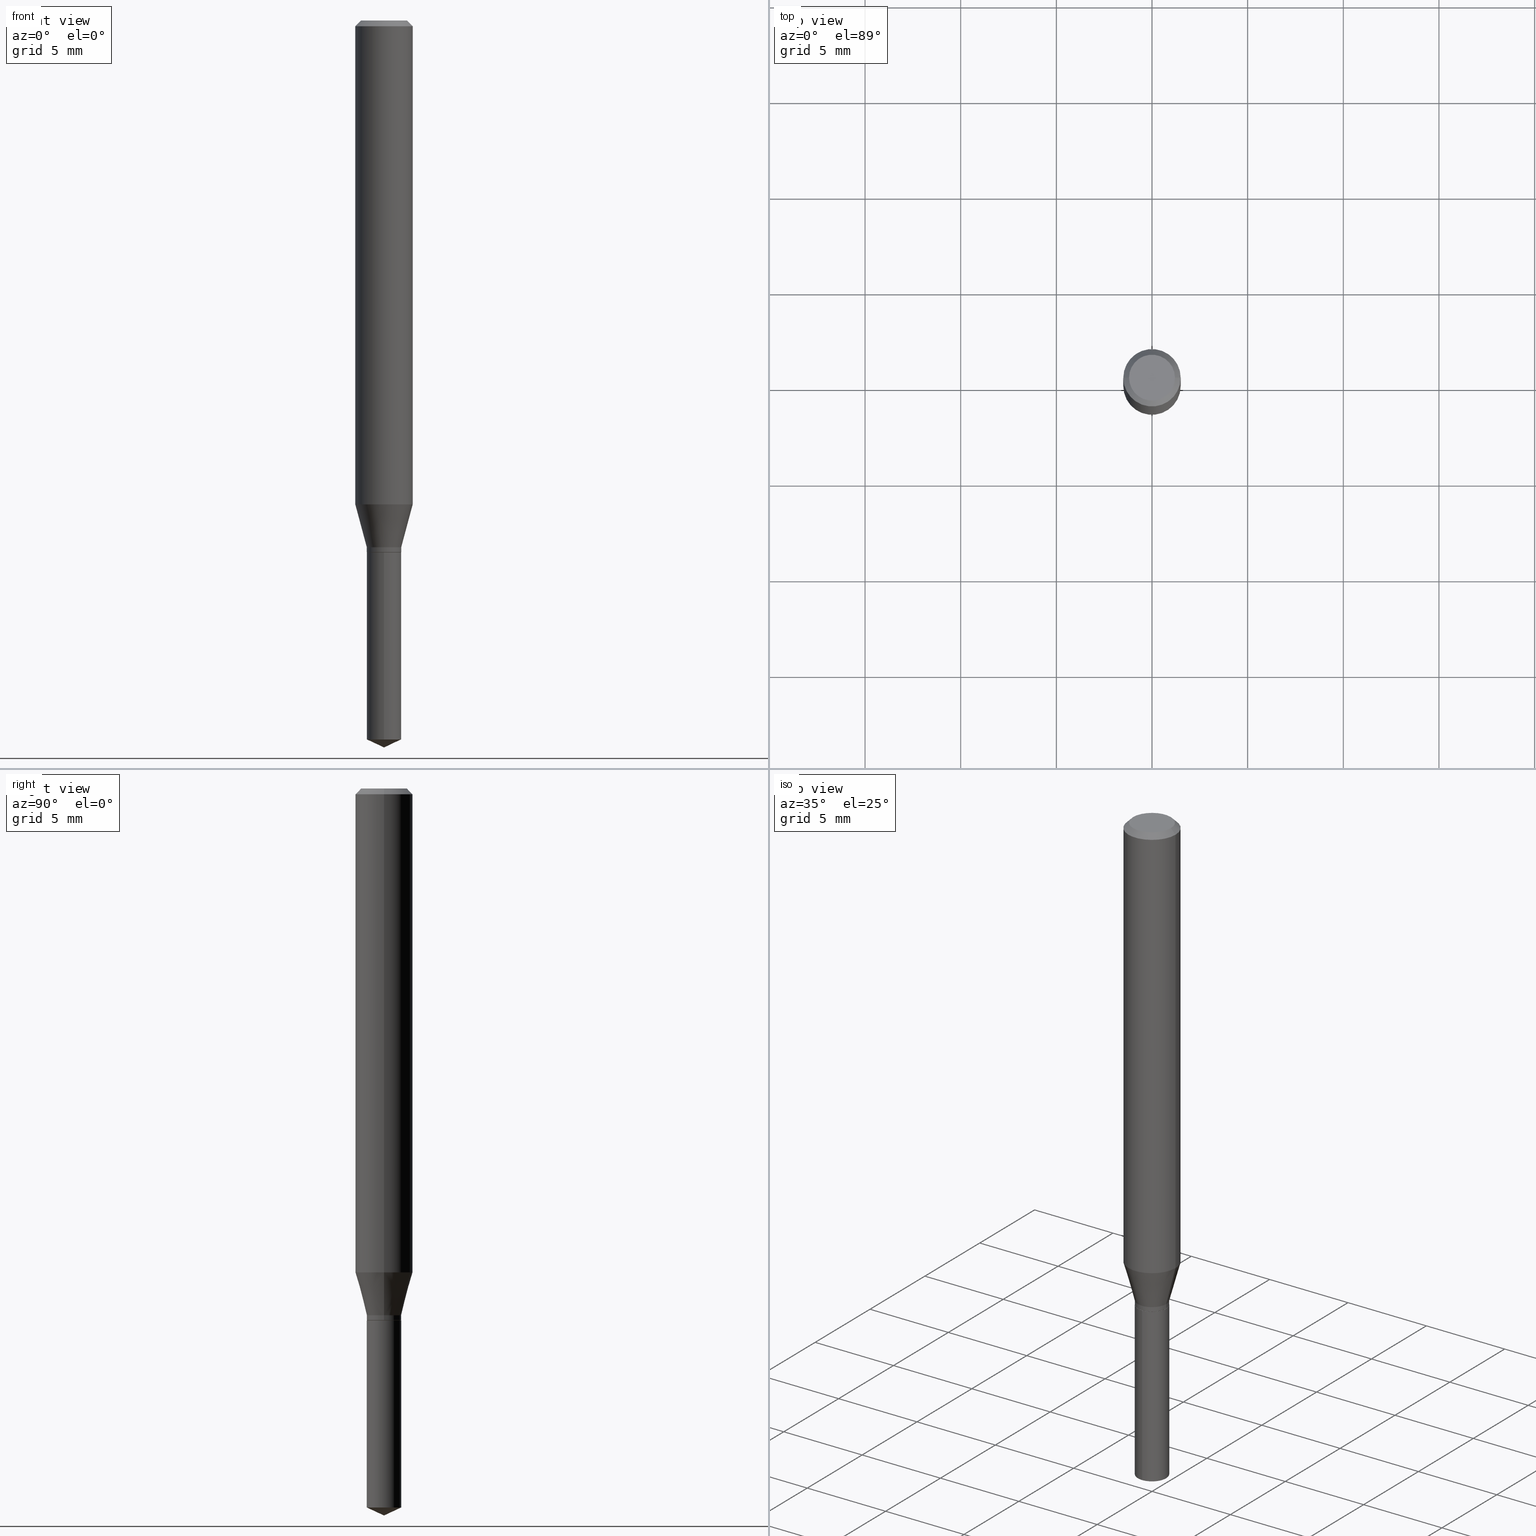
[diagram: canonical four-view strip — front | top / right | iso, engineering-drawing reading convention]
A machine part, canonical four-view strip (front | top / right | iso — engineering-drawing reading convention). The complete STEP part file that produces these views, byte-faithful:
ISO-10303-21;
HEADER;
FILE_DESCRIPTION (( 'STEP AP203' ),
    '1' );
FILE_NAME ('08178.STEP',
    '2024-04-24T13:43:27',
    ( '' ),
    ( '' ),
    'SwSTEP 2.0',
    'SolidWorks 2023',
    '' );
FILE_SCHEMA (( 'CONFIG_CONTROL_DESIGN' ));
ENDSEC;

DATA;
#1 = DIRECTION ( 'NONE',  ( -2.445468806185136597E-29, 3.491481338843145583E-15, 1.000000000000000000 ) ) ;
#2 = EDGE_CURVE ( 'NONE', #61, #256, #385, .T. ) ;
#3 = DIRECTION ( 'NONE',  ( 1.000000000000000000, -6.982962677686267499E-15, 0.000000000000000000 ) ) ;
#4 = CONICAL_SURFACE ( 'NONE', #412, 84.42940631927639572, 1.134464013796325332 ) ;
#5 = AXIS2_PLACEMENT_3D ( 'NONE', #473, #330, #176 ) ;
#6 = LINE ( 'NONE', #81, #243 ) ;
#7 = EDGE_CURVE ( 'NONE', #435, #362, #287, .T. ) ;
#8 = DIRECTION ( 'NONE',  ( -2.445468806185136597E-29, 3.491481338843145583E-15, 1.000000000000000000 ) ) ;
#9 = AXIS2_PLACEMENT_3D ( 'NONE', #236, #388, #123 ) ;
#10 = DIRECTION ( 'NONE',  ( -2.445468806185136877E-29, 3.491481338843145188E-15, 1.000000000000000000 ) ) ;
#11 = ORIENTED_EDGE ( 'NONE', *, *, #350, .T. ) ;
#12 = ORIENTED_EDGE ( 'NONE', *, *, #122, .F. ) ;
#13 = DIRECTION ( 'NONE',  ( 1.000000000000000000, -6.982962677686266711E-15, 4.876176775795935793E-29 ) ) ;
#14 = PRODUCT ( '08178', '08178', '', ( #65 ) ) ;
#15 = ORIENTED_EDGE ( 'NONE', *, *, #84, .T. ) ;
#16 = CC_DESIGN_PERSON_AND_ORGANIZATION_ASSIGNMENT ( #234, #445, ( #328 ) ) ;
#17 = ORIENTED_EDGE ( 'NONE', *, *, #22, .T. ) ;
#18 = ORIENTED_EDGE ( 'NONE', *, *, #350, .F. ) ;
#19 = AXIS2_PLACEMENT_3D ( 'NONE', #317, #239, #3 ) ;
#20 = ORIENTED_EDGE ( 'NONE', *, *, #464, .F. ) ;
#21 = LINE ( 'NONE', #195, #237 ) ;
#22 = EDGE_CURVE ( 'NONE', #435, #217, #177, .T. ) ;
#23 = PERSON_AND_ORGANIZATION ( #152, #248 ) ;
#24 = LINE ( 'NONE', #76, #200 ) ;
#25 = ADVANCED_FACE ( 'NONE', ( #213 ), #360, .T. ) ;
#26 = ORIENTED_EDGE ( 'NONE', *, *, #244, .T. ) ;
#27 = LINE ( 'NONE', #189, #199 ) ;
#28 = ORIENTED_EDGE ( 'NONE', *, *, #73, .F. ) ;
#29 = DIRECTION ( 'NONE',  ( -2.445468806185136597E-29, 3.491481338843145583E-15, 1.000000000000000000 ) ) ;
#30 = AXIS2_PLACEMENT_3D ( 'NONE', #434, #208, #393 ) ;
#31 = ORIENTED_EDGE ( 'NONE', *, *, #227, .T. ) ;
#32 = APPROVAL_PERSON_ORGANIZATION ( #358, #459, #319 ) ;
#33 = CONICAL_SURFACE ( 'NONE', #85, 0.03544999999999998846, 0.2617993877991499629 ) ;
#34 = FACE_OUTER_BOUND ( 'NONE', #288, .T. ) ;
#35 = AXIS2_PLACEMENT_3D ( 'NONE', #398, #132, #425 ) ;
#36 = ADVANCED_FACE ( 'NONE', ( #91 ), #219, .T. ) ;
#37 = FACE_OUTER_BOUND ( 'NONE', #225, .T. ) ;
#38 = EDGE_CURVE ( 'NONE', #430, #146, #141, .T. ) ;
#39 = CARTESIAN_POINT ( 'NONE',  ( 2.676565608369631794E-29, -3.821426325363822773E-15, -1.094499999999999806 ) ) ;
#40 = ORIENTED_EDGE ( 'NONE', *, *, #426, .T. ) ;
#41 = APPROVAL_ROLE ( '' ) ;
#42 = DIRECTION ( 'NONE',  ( -0.7071067811864205632, 7.493145998869895043E-15, 0.7071067811866742492 ) ) ;
#43 = AXIS2_PLACEMENT_3D ( 'NONE', #79, #235, #409 ) ;
#44 = SECURITY_CLASSIFICATION_LEVEL ( 'unclassified' ) ;
#45 = DIRECTION ( 'NONE',  ( 0.2588190451025212391, 1.565188264969622362E-15, 0.9659258262890679791 ) ) ;
#46 = APPROVAL ( #277, 'UNSPECIFIED' ) ;
#47 = PLANE ( 'NONE',  #450 ) ;
#48 = APPROVAL_PERSON_ORGANIZATION ( #221, #46, #134 ) ;
#49 = FACE_OUTER_BOUND ( 'NONE', #144, .T. ) ;
#50 = LOCAL_TIME ( 9, 43, 27.00000000000000000, #442 ) ;
#51 = CIRCLE ( 'NONE', #9, 0.03495000000000000190 ) ;
#52 = ORIENTED_EDGE ( 'NONE', *, *, #355, .F. ) ;
#53 =( NAMED_UNIT ( * ) PLANE_ANGLE_UNIT ( ) SI_UNIT ( $, .RADIAN. ) );
#54 = CARTESIAN_POINT ( 'NONE',  ( 8.265746106709734507E-48, -1.180129479067563789E-33, -3.380025165646692144E-19 ) ) ;
#55 = CALENDAR_DATE ( 2024, 24, 4 ) ;
#56 = VERTEX_POINT ( 'NONE', #463 ) ;
#57 = AXIS2_PLACEMENT_3D ( 'NONE', #230, #298, #449 ) ;
#58 = AXIS2_PLACEMENT_3D ( 'NONE', #428, #8, #371 ) ;
#59 = DIRECTION ( 'NONE',  ( 1.000000000000000000, -6.982962677686269866E-15, 0.000000000000000000 ) ) ;
#60 = EDGE_CURVE ( 'NONE', #56, #467, #480, .T. ) ;
#61 = VERTEX_POINT ( 'NONE', #245 ) ;
#62 = ORIENTED_EDGE ( 'NONE', *, *, #73, .T. ) ;
#63 = CARTESIAN_POINT ( 'NONE',  ( -0.05904999999999999832, 3.711095515056362547E-16, -0.01181000000000007218 ) ) ;
#64 = VERTEX_POINT ( 'NONE', #324 ) ;
#65 = MECHANICAL_CONTEXT ( 'NONE', #303, 'mechanical' ) ;
#66 = AXIS2_PLACEMENT_3D ( 'NONE', #164, #1, #461 ) ;
#67 = ADVANCED_FACE ( 'NONE', ( #286 ), #170, .F. ) ;
#68 = CARTESIAN_POINT ( 'NONE',  ( 2.888098660104664204E-31, -4.123439461173780263E-17, -0.01181000000000007218 ) ) ;
#69 = ORIENTED_EDGE ( 'NONE', *, *, #311, .F. ) ;
#70 = ORIENTED_EDGE ( 'NONE', *, *, #129, .T. ) ;
#71 = CYLINDRICAL_SURFACE ( 'NONE', #165, 0.03544999999999999540 ) ;
#72 = DIRECTION ( 'NONE',  ( -2.445468806185136597E-29, 3.491481338843145583E-15, 1.000000000000000000 ) ) ;
#73 = EDGE_CURVE ( 'NONE', #56, #325, #320, .T. ) ;
#74 = LOCAL_TIME ( 9, 43, 27.00000000000000000, #153 ) ;
#75 = VECTOR ( 'NONE', #306, 39.37007874015748854 ) ;
#76 = CARTESIAN_POINT ( 'NONE',  ( 0.03495000000000000190, -4.065480870948958439E-15, -1.094500000000000028 ) ) ;
#77 = CC_DESIGN_DATE_AND_TIME_ASSIGNMENT ( #482, #112, ( #115 ) ) ;
#78 = PERSON_AND_ORGANIZATION_ROLE ( 'classification_officer' ) ;
#79 = CARTESIAN_POINT ( 'NONE',  ( 2.888098660104664204E-31, -4.123439461173780263E-17, -0.01181000000000007218 ) ) ;
#80 = VERTEX_POINT ( 'NONE', #95 ) ;
#81 = CARTESIAN_POINT ( 'NONE',  ( -0.03495000000000000190, -3.573091639215668287E-15, -1.094500000000000028 ) ) ;
#82 = VECTOR ( 'NONE', #10, 39.37007874015748143 ) ;
#83 = CARTESIAN_POINT ( 'NONE',  ( 8.265746106709734507E-48, -1.180129479067563789E-33, -3.380025165646692144E-19 ) ) ;
#84 = EDGE_CURVE ( 'NONE', #149, #80, #399, .T. ) ;
#85 = AXIS2_PLACEMENT_3D ( 'NONE', #113, #197, #486 ) ;
#86 = CARTESIAN_POINT ( 'NONE',  ( 0.000000000000000000, 0.000000000000000000, 0.000000000000000000 ) ) ;
#87 = LINE ( 'NONE', #452, #232 ) ;
#88 = DIRECTION ( 'NONE',  ( 1.000000000000000000, -6.982962677686266711E-15, 4.876176775795935793E-29 ) ) ;
#89 = ADVANCED_FACE ( 'NONE', ( #394 ), #251, .T. ) ;
#90 = DATE_AND_TIME ( #55, #327 ) ;
#91 = FACE_OUTER_BOUND ( 'NONE', #407, .T. ) ;
#92 =( CONVERSION_BASED_UNIT ( 'INCH', #103 ) LENGTH_UNIT ( ) NAMED_UNIT ( #314 ) );
#93 = DIRECTION ( 'NONE',  ( 2.445468806185136597E-29, -3.491481338843145583E-15, -1.000000000000000000 ) ) ;
#94 = EDGE_LOOP ( 'NONE', ( #98, #367, #12, #335 ) ) ;
#95 = CARTESIAN_POINT ( 'NONE',  ( -2.475460269239419410E-16, -0.03545000000000516488, -1.479569393518405773 ) ) ;
#96 = AXIS2_PLACEMENT_3D ( 'NONE', #202, #240, #490 ) ;
#97 = AXIS2_PLACEMENT_3D ( 'NONE', #54, #135, #250 ) ;
#98 = ORIENTED_EDGE ( 'NONE', *, *, #198, .T. ) ;
#99 = ORIENTED_EDGE ( 'NONE', *, *, #359, .F. ) ;
#100 = CARTESIAN_POINT ( 'NONE',  ( 2.676565608369631794E-29, -3.821426325363822773E-15, -1.094499999999999806 ) ) ;
#101 = EDGE_LOOP ( 'NONE', ( #20, #289, #260 ) ) ;
#102 = ADVANCED_FACE ( 'NONE', ( #339 ), #278, .T. ) ;
#103 = LENGTH_MEASURE_WITH_UNIT ( LENGTH_MEASURE( 0.02539999999999999897 ), #171 );
#104 = ORIENTED_EDGE ( 'NONE', *, *, #205, .T. ) ;
#105 = CARTESIAN_POINT ( 'NONE',  ( 0.000000000000000000, 0.000000000000000000, 0.000000000000000000 ) ) ;
#106 = CARTESIAN_POINT ( 'NONE',  ( -0.03544999999999999540, 2.518873998269554832E-16, -1.743762489495363738E-30 ) ) ;
#107 = CARTESIAN_POINT ( 'NONE',  ( 2.676565608369632355E-29, -3.821426325363822773E-15, -1.094500000000000028 ) ) ;
#108 = ORIENTED_EDGE ( 'NONE', *, *, #426, .F. ) ;
#109 = CARTESIAN_POINT ( 'NONE',  ( 0.05905000000000011628, -3.889243465583765977E-15, -0.9958236009413741208 ) ) ;
#110 = ADVANCED_FACE ( 'NONE', ( #376 ), #4, .T. ) ;
#111 = ORIENTED_EDGE ( 'NONE', *, *, #244, .F. ) ;
#112 = DATE_TIME_ROLE ( 'classification_date' ) ;
#113 = CARTESIAN_POINT ( 'NONE',  ( 2.650643639024069224E-29, -3.784416623172084531E-15, -1.083899999999999864 ) ) ;
#114 = PRODUCT_RELATED_PRODUCT_CATEGORY ( 'detail', '', ( #14 ) ) ;
#115 = SECURITY_CLASSIFICATION ( '', '', #44 ) ;
#116 = CONICAL_SURFACE ( 'NONE', #43, 0.05904999999999999832, 0.7853981633974452814 ) ;
#117 = DIRECTION ( 'NONE',  ( -6.982962677686267499E-15, -1.000000000000000000, 3.520397390770368279E-15 ) ) ;
#118 = CALENDAR_DATE ( 2024, 24, 4 ) ;
#119 = EDGE_CURVE ( 'NONE', #326, #80, #262, .T. ) ;
#120 = LINE ( 'NONE', #419, #154 ) ;
#121 = APPROVAL_STATUS ( 'not_yet_approved' ) ;
#122 = EDGE_CURVE ( 'NONE', #64, #217, #266, .T. ) ;
#123 = DIRECTION ( 'NONE',  ( 1.000000000000000000, -6.982962677686267499E-15, 0.000000000000000000 ) ) ;
#124 = CYLINDRICAL_SURFACE ( 'NONE', #204, 0.05905000000000006077 ) ;
#125 = CLOSED_SHELL ( 'NONE', ( #184, #209, #433, #261, #136, #25, #102, #36, #89, #67, #296, #192 ) ) ;
#126 = AXIS2_PLACEMENT_3D ( 'NONE', #279, #469, #137 ) ;
#127 = CARTESIAN_POINT ( 'NONE',  ( -0.04724000000000000421, 3.504923541997677355E-16, -3.380025165670481712E-19 ) ) ;
#128 = DIRECTION ( 'NONE',  ( 2.445402730703145099E-29, -3.491575962694140016E-15, -1.000000000000000000 ) ) ;
#129 = EDGE_CURVE ( 'NONE', #256, #61, #220, .T. ) ;
#130 = VERTEX_POINT ( 'NONE', #411 ) ;
#131 = DIRECTION ( 'NONE',  ( 1.000000000000000000, 0.000000000000000000, 0.000000000000000000 ) ) ;
#132 = DIRECTION ( 'NONE',  ( -2.445402730703145379E-29, 3.491575962694140016E-15, 1.000000000000000000 ) ) ;
#133 = AXIS2_PLACEMENT_3D ( 'NONE', #158, #156, #301 ) ;
#134 = APPROVAL_ROLE ( '' ) ;
#135 = DIRECTION ( 'NONE',  ( -2.445468806185136597E-29, 3.491481338843145583E-15, 1.000000000000000000 ) ) ;
#136 = ADVANCED_FACE ( 'NONE', ( #37 ), #71, .T. ) ;
#137 = DIRECTION ( 'NONE',  ( -1.000000000000000000, 6.982962677686265922E-15, -4.876176775795935793E-29 ) ) ;
#138 = VERTEX_POINT ( 'NONE', #109 ) ;
#139 = CARTESIAN_POINT ( 'NONE',  ( -0.03544999999999998846, -3.532529223345129541E-15, -1.083899999999999864 ) ) ;
#140 = AXIS2_PLACEMENT_3D ( 'NONE', #483, #157, #294 ) ;
#141 = CIRCLE ( 'NONE', #273, 0.03545000000000000234 ) ;
#142 = ORIENTED_EDGE ( 'NONE', *, *, #369, .T. ) ;
#143 = ORIENTED_EDGE ( 'NONE', *, *, #359, .T. ) ;
#144 = EDGE_LOOP ( 'NONE', ( #259, #293 ) ) ;
#145 = APPROVAL_DATE_TIME ( #90, #46 ) ;
#146 = VERTEX_POINT ( 'NONE', #267 ) ;
#147 = DIRECTION ( 'NONE',  ( 1.000000000000000000, -6.982962677686265133E-15, 4.876176775795935793E-29 ) ) ;
#148 = PERSON_AND_ORGANIZATION ( #152, #248 ) ;
#149 = VERTEX_POINT ( 'NONE', #380 ) ;
#150 = ORIENTED_EDGE ( 'NONE', *, *, #60, .F. ) ;
#151 = LINE ( 'NONE', #332, #465 ) ;
#152 = PERSON ( 'UNSPECIFIED', 'UNSPECIFIED', 'UNSPECIFIED', ('UNSPECIFIED'), ('UNSPECIFIED'), ('UNSPECIFIED') ) ;
#153 = COORDINATED_UNIVERSAL_TIME_OFFSET ( 5, 0, .BEHIND. ) ;
#154 = VECTOR ( 'NONE', #387, 39.37007874015748143 ) ;
#155 = MANIFOLD_SOLID_BREP ( 'Body-Move/Copy2[1]', #315 ) ;
#156 = DIRECTION ( 'NONE',  ( -2.445468806185136597E-29, 3.491481338843145583E-15, 1.000000000000000000 ) ) ;
#157 = DIRECTION ( 'NONE',  ( -2.445468806185136597E-29, 3.491481338843145583E-15, 1.000000000000000000 ) ) ;
#158 = CARTESIAN_POINT ( 'NONE',  ( 2.435255552565086005E-29, -3.476899519466391057E-15, -0.9958236009413741208 ) ) ;
#159 = CIRCLE ( 'NONE', #66, 0.03544999999999998846 ) ;
#160 = DIRECTION ( 'NONE',  ( -6.982962677686265922E-15, -1.000000000000000000, 3.853100132107564390E-15 ) ) ;
#161 = EDGE_CURVE ( 'NONE', #130, #256, #24, .T. ) ;
#162 = CARTESIAN_POINT ( 'NONE',  ( 0.04724000000000000421, -3.852183633974369345E-16, -3.380025165621689721E-19 ) ) ;
#163 = DIRECTION ( 'NONE',  ( -2.445402730703145379E-29, 3.491575962694140016E-15, 1.000000000000000000 ) ) ;
#164 = CARTESIAN_POINT ( 'NONE',  ( 2.650643639024069224E-29, -3.784416623172084531E-15, -1.083899999999999864 ) ) ;
#165 = AXIS2_PLACEMENT_3D ( 'NONE', #105, #444, #147 ) ;
#166 = VECTOR ( 'NONE', #322, 39.37007874015748143 ) ;
#167 = DIRECTION ( 'NONE',  ( 1.000000000000000000, -6.982962677686266711E-15, 4.876185090822587894E-29 ) ) ;
#168 = ORIENTED_EDGE ( 'NONE', *, *, #384, .F. ) ;
#169 = APPLICATION_PROTOCOL_DEFINITION ( 'international standard', 'config_control_design', 1994, #303 ) ;
#170 = PLANE ( 'NONE',  #126 ) ;
#171 =( LENGTH_UNIT ( ) NAMED_UNIT ( * ) SI_UNIT ( $, .METRE. ) );
#172 = DIRECTION ( 'NONE',  ( -0.2588190451025212391, 5.211531920934549464E-15, 0.9659258262890679791 ) ) ;
#173 = CIRCLE ( 'NONE', #133, 0.05905000000000011628 ) ;
#174 = EDGE_CURVE ( 'NONE', #138, #64, #345, .T. ) ;
#175 = CARTESIAN_POINT ( 'NONE',  ( 0.000000000000000000, 0.000000000000000000, 0.000000000000000000 ) ) ;
#176 = DIRECTION ( 'NONE',  ( 1.000000000000000000, -6.982962677686265133E-15, 4.876176775795935793E-29 ) ) ;
#177 = LINE ( 'NONE', #63, #166 ) ;
#178 = ORIENTED_EDGE ( 'NONE', *, *, #477, .T. ) ;
#179 = APPROVAL_PERSON_ORGANIZATION ( #264, #272, #41 ) ;
#180 = ORIENTED_EDGE ( 'NONE', *, *, #281, .F. ) ;
#181 = AXIS2_PLACEMENT_3D ( 'NONE', #83, #241, #167 ) ;
#182 = EDGE_LOOP ( 'NONE', ( #183, #253, #17, #31 ) ) ;
#183 = ORIENTED_EDGE ( 'NONE', *, *, #369, .F. ) ;
#184 = ADVANCED_FACE ( 'NONE', ( #485 ), #249, .T. ) ;
#185 = DIRECTION ( 'NONE',  ( -2.445402730703145379E-29, 3.491575962694140016E-15, 1.000000000000000000 ) ) ;
#186 = DATE_AND_TIME ( #323, #74 ) ;
#187 = CARTESIAN_POINT ( 'NONE',  ( 2.888098660104664204E-31, -4.123439461173780263E-17, -0.01181000000000007218 ) ) ;
#188 = ORIENTED_EDGE ( 'NONE', *, *, #414, .F. ) ;
#189 = CARTESIAN_POINT ( 'NONE',  ( 3.658712932950369103E-29, -5.223539666176875291E-15, -1.496099999999999985 ) ) ;
#190 = DIRECTION ( 'NONE',  ( -2.445402730703145379E-29, 3.491575962694140016E-15, 1.000000000000000000 ) ) ;
#191 = EDGE_LOOP ( 'NONE', ( #423, #282, #104, #150 ) ) ;
#192 = ADVANCED_FACE ( 'NONE', ( #373 ), #361, .T. ) ;
#193 = CALENDAR_DATE ( 2024, 24, 4 ) ;
#194 = AXIS2_PLACEMENT_3D ( 'NONE', #214, #364, #59 ) ;
#195 = CARTESIAN_POINT ( 'NONE',  ( 2.518873998269822552E-16, 0.03544999999999617901, -1.094500000000000028 ) ) ;
#196 = DIRECTION ( 'NONE',  ( 1.000000000000000000, -6.982962677686267499E-15, 0.000000000000000000 ) ) ;
#197 = DIRECTION ( 'NONE',  ( -2.445468806185136597E-29, 3.491481338843145583E-15, 1.000000000000000000 ) ) ;
#198 = EDGE_CURVE ( 'NONE', #138, #325, #173, .T. ) ;
#199 = VECTOR ( 'NONE', #297, 39.37007874015748854 ) ;
#200 = VECTOR ( 'NONE', #479, 39.37007874015748854 ) ;
#201 = FACE_OUTER_BOUND ( 'NONE', #441, .T. ) ;
#202 = CARTESIAN_POINT ( 'NONE',  ( -3.104317707093147810E-30, -8.098976581537694552E-15, -1.094500000000000028 ) ) ;
#203 = FACE_OUTER_BOUND ( 'NONE', #101, .T. ) ;
#204 = AXIS2_PLACEMENT_3D ( 'NONE', #86, #316, #88 ) ;
#205 = EDGE_CURVE ( 'NONE', #256, #467, #151, .T. ) ;
#206 = CARTESIAN_POINT ( 'NONE',  ( 2.676565608369631794E-29, -3.821426325363822773E-15, -1.094499999999999806 ) ) ;
#207 = AXIS2_PLACEMENT_3D ( 'NONE', #39, #383, #356 ) ;
#208 = DIRECTION ( 'NONE',  ( -2.445402730703145379E-29, 3.491575962694140016E-15, 1.000000000000000000 ) ) ;
#209 = ADVANCED_FACE ( 'NONE', ( #34 ), #116, .T. ) ;
#210 = ORIENTED_EDGE ( 'NONE', *, *, #414, .T. ) ;
#211 = LINE ( 'NONE', #106, #82 ) ;
#212 = AXIS2_PLACEMENT_3D ( 'NONE', #413, #29, #196 ) ;
#213 = FACE_OUTER_BOUND ( 'NONE', #191, .T. ) ;
#214 = CARTESIAN_POINT ( 'NONE',  ( 2.675342873966538993E-29, -3.819680584694400481E-15, -1.093999999999999861 ) ) ;
#215 = EDGE_CURVE ( 'NONE', #149, #146, #21, .T. ) ;
#216 = CARTESIAN_POINT ( 'NONE',  ( 0.000000000000000000, 0.000000000000000000, 0.000000000000000000 ) ) ;
#217 = VERTEX_POINT ( 'NONE', #336 ) ;
#218 = LOCAL_TIME ( 9, 43, 27.00000000000000000, #484 ) ;
#219 = CYLINDRICAL_SURFACE ( 'NONE', #343, 0.05905000000000006077 ) ;
#220 = CIRCLE ( 'NONE', #285, 0.03544999999999999540 ) ;
#221 = PERSON_AND_ORGANIZATION ( #152, #248 ) ;
#222 = ORIENTED_EDGE ( 'NONE', *, *, #60, .T. ) ;
#223 = DIRECTION ( 'NONE',  ( -2.445468806185136597E-29, 3.491481338843145583E-15, 1.000000000000000000 ) ) ;
#224 =( NAMED_UNIT ( * ) SI_UNIT ( $, .STERADIAN. ) SOLID_ANGLE_UNIT ( ) );
#225 = EDGE_LOOP ( 'NONE', ( #70, #178, #108, #252 ) ) ;
#226 = DIRECTION ( 'NONE',  ( 1.000000000000000000, -6.982962677686267499E-15, 0.000000000000000000 ) ) ;
#227 = EDGE_CURVE ( 'NONE', #217, #64, #488, .T. ) ;
#228 = EDGE_LOOP ( 'NONE', ( #99, #290, #341, #400 ) ) ;
#229 = SHAPE_DEFINITION_REPRESENTATION ( #405, #351 ) ;
#230 = CARTESIAN_POINT ( 'NONE',  ( 2.650643639024069224E-29, -3.784416623172084531E-15, -1.083899999999999864 ) ) ;
#231 = APPROVAL_DATE_TIME ( #489, #272 ) ;
#232 = VECTOR ( 'NONE', #270, 39.37007874015748143 ) ;
#233 = CARTESIAN_POINT ( 'NONE',  ( 2.675342873966538993E-29, -3.819680584694400481E-15, -1.093999999999999861 ) ) ;
#234 = PERSON_AND_ORGANIZATION ( #152, #248 ) ;
#235 = DIRECTION ( 'NONE',  ( 2.445468806185136597E-29, -3.491481338843145583E-15, -1.000000000000000000 ) ) ;
#236 = CARTESIAN_POINT ( 'NONE',  ( 2.676565608369632355E-29, -3.821426325363822773E-15, -1.094500000000000028 ) ) ;
#237 = VECTOR ( 'NONE', #190, 39.37007874015748143 ) ;
#238 = CIRCLE ( 'NONE', #379, 0.03544999999999999540 ) ;
#239 = DIRECTION ( 'NONE',  ( -2.445468806185136597E-29, 3.491481338843145583E-15, 1.000000000000000000 ) ) ;
#240 = DIRECTION ( 'NONE',  ( -2.438088387897960049E-29, 3.491481338843145188E-15, 1.000000000000000000 ) ) ;
#241 = DIRECTION ( 'NONE',  ( -2.445468806185136597E-29, 3.491481338843145583E-15, 1.000000000000000000 ) ) ;
#242 = VERTEX_POINT ( 'NONE', #474 ) ;
#243 = VECTOR ( 'NONE', #42, 39.37007874015748854 ) ;
#244 = EDGE_CURVE ( 'NONE', #325, #138, #354, .T. ) ;
#245 = CARTESIAN_POINT ( 'NONE',  ( -0.03544999999999999540, -3.550161204106287516E-15, -1.093999999999999861 ) ) ;
#246 = DIRECTION ( 'NONE',  ( -1.000000000000000000, 6.982962677686266711E-15, 0.000000000000000000 ) ) ;
#247 = UNCERTAINTY_MEASURE_WITH_UNIT (LENGTH_MEASURE( 1.000000000000000082E-05 ), #92, 'distance_accuracy_value', 'NONE');
#248 = ORGANIZATION ( 'UNSPECIFIED', 'UNSPECIFIED', '' ) ;
#249 = CONICAL_SURFACE ( 'NONE', #212, 0.03495000000000000190, 0.7853981633972689780 ) ;
#250 = DIRECTION ( 'NONE',  ( 1.000000000000000000, -6.982962677686266711E-15, 4.876185090822587894E-29 ) ) ;
#251 = CONICAL_SURFACE ( 'NONE', #418, 0.05904999999999999832, 0.7853981633974452814 ) ;
#252 = ORIENTED_EDGE ( 'NONE', *, *, #205, .F. ) ;
#253 = ORIENTED_EDGE ( 'NONE', *, *, #7, .F. ) ;
#254 = PRODUCT_DEFINITION ( 'UNKNOWN', '', #328, #470 ) ;
#255 = ORIENTED_EDGE ( 'NONE', *, *, #215, .T. ) ;
#256 = VERTEX_POINT ( 'NONE', #446 ) ;
#257 = APPROVAL_STATUS ( 'not_yet_approved' ) ;
#258 = CARTESIAN_POINT ( 'NONE',  ( 3.658567025404975087E-29, -5.223746797786701947E-15, -1.496099999999999985 ) ) ;
#259 = ORIENTED_EDGE ( 'NONE', *, *, #38, .T. ) ;
#260 = ORIENTED_EDGE ( 'NONE', *, *, #84, .F. ) ;
#261 = ADVANCED_FACE ( 'NONE', ( #436 ), #33, .T. ) ;
#262 = LINE ( 'NONE', #258, #75 ) ;
#263 = DIRECTION ( 'NONE',  ( -2.445468806185136877E-29, 3.491481338843145188E-15, 1.000000000000000000 ) ) ;
#264 = PERSON_AND_ORGANIZATION ( #152, #248 ) ;
#265 = CARTESIAN_POINT ( 'NONE',  ( 0.05905000000000006077, -4.123439461173744764E-16, 2.879382386107503023E-30 ) ) ;
#266 = CIRCLE ( 'NONE', #340, 0.05904999999999999832 ) ;
#267 = CARTESIAN_POINT ( 'NONE',  ( 2.518873998269917215E-16, 0.03544999999999617901, -1.094500000000000028 ) ) ;
#268 = PLANE ( 'NONE',  #96 ) ;
#269 = COORDINATED_UNIVERSAL_TIME_OFFSET ( 5, 0, .BEHIND. ) ;
#270 = DIRECTION ( 'NONE',  ( 0.7071067811865453523, -7.319954787623248157E-15, -0.7071067811865496822 ) ) ;
#271 = FACE_OUTER_BOUND ( 'NONE', #481, .T. ) ;
#272 = APPROVAL ( #121, 'UNSPECIFIED' ) ;
#273 = AXIS2_PLACEMENT_3D ( 'NONE', #100, #280, #471 ) ;
#274 = CARTESIAN_POINT ( 'NONE',  ( 3.618215354789745296E-29, -5.165925363741898553E-15, -1.479569393518405773 ) ) ;
#275 = CARTESIAN_POINT ( 'NONE',  ( -2.475460269239513581E-16, -0.03545000000000382567, -1.094499999999999806 ) ) ;
#276 = ADVANCED_FACE ( 'NONE', ( #271 ), #416, .T. ) ;
#277 = APPROVAL_STATUS ( 'not_yet_approved' ) ;
#278 = CONICAL_SURFACE ( 'NONE', #57, 0.03544999999999998846, 0.2617993877991499629 ) ;
#279 = CARTESIAN_POINT ( 'NONE',  ( 4.132873053354867254E-48, -5.900647395337818946E-34, -1.690012582823346072E-19 ) ) ;
#280 = DIRECTION ( 'NONE',  ( -2.445402730703145379E-29, 3.491575962694140016E-15, 1.000000000000000000 ) ) ;
#281 = EDGE_CURVE ( 'NONE', #325, #217, #349, .T. ) ;
#282 = ORIENTED_EDGE ( 'NONE', *, *, #2, .T. ) ;
#283 = ORIENTED_EDGE ( 'NONE', *, *, #305, .F. ) ;
#284 = EDGE_LOOP ( 'NONE', ( #447, #397, #18 ) ) ;
#285 = AXIS2_PLACEMENT_3D ( 'NONE', #233, #223, #408 ) ;
#286 = FACE_OUTER_BOUND ( 'NONE', #402, .T. ) ;
#287 = CIRCLE ( 'NONE', #97, 0.04724000000000000421 ) ;
#288 = EDGE_LOOP ( 'NONE', ( #401, #142, #438, #432 ) ) ;
#289 = ORIENTED_EDGE ( 'NONE', *, *, #119, .T. ) ;
#290 = ORIENTED_EDGE ( 'NONE', *, *, #384, .T. ) ;
#291 = DIRECTION ( 'NONE',  ( -2.445468806185136597E-29, 3.491481338843145583E-15, 1.000000000000000000 ) ) ;
#292 = PERSON_AND_ORGANIZATION_ROLE ( 'creator' ) ;
#293 = ORIENTED_EDGE ( 'NONE', *, *, #311, .T. ) ;
#294 = DIRECTION ( 'NONE',  ( 1.000000000000000000, -6.982962677686266711E-15, 0.000000000000000000 ) ) ;
#295 = EDGE_LOOP ( 'NONE', ( #40, #62, #377, #188 ) ) ;
#296 = ADVANCED_FACE ( 'NONE', ( #201 ), #268, .F. ) ;
#297 = DIRECTION ( 'NONE',  ( 6.439704144417057174E-15, 0.9063077870366561539, 0.4226182617406862851 ) ) ;
#298 = DIRECTION ( 'NONE',  ( -2.445468806185136597E-29, 3.491481338843145583E-15, 1.000000000000000000 ) ) ;
#299 = CONICAL_SURFACE ( 'NONE', #391, 84.42940631927639572, 1.134464013796325332 ) ;
#300 = APPROVAL_DATE_TIME ( #186, #459 ) ;
#301 = DIRECTION ( 'NONE',  ( 1.000000000000000000, -6.982962677686266711E-15, 0.000000000000000000 ) ) ;
#302 = ORIENTED_EDGE ( 'NONE', *, *, #227, .F. ) ;
#303 = APPLICATION_CONTEXT ( 'configuration controlled 3d designs of mechanical parts and assemblies' ) ;
#304 = CARTESIAN_POINT ( 'NONE',  ( -9.261705871415894043E-28, 1.322399773465276608E-13, 37.87397874015748300 ) ) ;
#305 = EDGE_CURVE ( 'NONE', #80, #430, #120, .T. ) ;
#306 = DIRECTION ( 'NONE',  ( -6.328713451373402511E-15, -0.9063077870366532673, 0.4226182617406926134 ) ) ;
#307 = CC_DESIGN_PERSON_AND_ORGANIZATION_ASSIGNMENT ( #342, #78, ( #115 ) ) ;
#308 = VECTOR ( 'NONE', #347, 39.37007874015748143 ) ;
#309 = CARTESIAN_POINT ( 'NONE',  ( -0.05905000000000011628, -3.057324034000050775E-15, -0.9958236009413741208 ) ) ;
#310 = CARTESIAN_POINT ( 'NONE',  ( -9.261705871415894043E-28, 1.322399773465276608E-13, 37.87397874015748300 ) ) ;
#311 = EDGE_CURVE ( 'NONE', #146, #430, #472, .T. ) ;
#312 = DIRECTION ( 'NONE',  ( 6.982962677686265922E-15, 1.000000000000000000, -3.491575962694140016E-15 ) ) ;
#313 = CC_DESIGN_APPROVAL ( #459, ( #254 ) ) ;
#314 = DIMENSIONAL_EXPONENTS ( 1.000000000000000000, 0.000000000000000000, 0.000000000000000000, 0.000000000000000000, 0.000000000000000000, 0.000000000000000000, 0.000000000000000000 ) ;
#315 = CLOSED_SHELL ( 'NONE', ( #487, #110, #363, #276, #344 ) ) ;
#316 = DIRECTION ( 'NONE',  ( -2.445468806185136597E-29, 3.491481338843145583E-15, 1.000000000000000000 ) ) ;
#317 = CARTESIAN_POINT ( 'NONE',  ( 2.676565608369632355E-29, -3.821426325363822773E-15, -1.094500000000000028 ) ) ;
#318 = ORIENTED_EDGE ( 'NONE', *, *, #355, .T. ) ;
#319 = APPROVAL_ROLE ( '' ) ;
#320 = LINE ( 'NONE', #139, #457 ) ;
#321 = AXIS2_PLACEMENT_3D ( 'NONE', #187, #72, #378 ) ;
#322 = DIRECTION ( 'NONE',  ( -0.7071067811865453523, 2.468850131082234184E-15, -0.7071067811865496822 ) ) ;
#323 = CALENDAR_DATE ( 2024, 24, 4 ) ;
#324 = CARTESIAN_POINT ( 'NONE',  ( 0.05904999999999999832, -4.535783407291118600E-16, -0.01181000000000007218 ) ) ;
#325 = VERTEX_POINT ( 'NONE', #309 ) ;
#326 = VERTEX_POINT ( 'NONE', #420 ) ;
#327 = LOCAL_TIME ( 9, 43, 27.00000000000000000, #424 ) ;
#328 = PRODUCT_DEFINITION_FORMATION_WITH_SPECIFIED_SOURCE ( 'ANY', '', #14, .NOT_KNOWN. ) ;
#329 = CIRCLE ( 'NONE', #181, 0.04724000000000000421 ) ;
#330 = DIRECTION ( 'NONE',  ( -2.445468806185136597E-29, 3.491481338843145583E-15, 1.000000000000000000 ) ) ;
#331 = ORIENTED_EDGE ( 'NONE', *, *, #161, .F. ) ;
#332 = CARTESIAN_POINT ( 'NONE',  ( 0.03544999999999999540, -2.475460269239780807E-16, 1.728604667019659090E-30 ) ) ;
#333 = CC_DESIGN_PERSON_AND_ORGANIZATION_ASSIGNMENT ( #23, #478, ( #14 ) ) ;
#334 = FACE_OUTER_BOUND ( 'NONE', #429, .T. ) ;
#335 = ORIENTED_EDGE ( 'NONE', *, *, #174, .F. ) ;
#336 = CARTESIAN_POINT ( 'NONE',  ( -0.05904999999999999832, -1.339491471572724111E-15, -0.01181000000000007218 ) ) ;
#337 = EDGE_LOOP ( 'NONE', ( #318, #143, #365, #331 ) ) ;
#338 =( GEOMETRIC_REPRESENTATION_CONTEXT ( 3 ) GLOBAL_UNCERTAINTY_ASSIGNED_CONTEXT ( ( #247 ) ) GLOBAL_UNIT_ASSIGNED_CONTEXT ( ( #92, #53, #224 ) ) REPRESENTATION_CONTEXT ( 'NONE', 'WORKASPACE' ) );
#339 = FACE_OUTER_BOUND ( 'NONE', #431, .T. ) ;
#340 = AXIS2_PLACEMENT_3D ( 'NONE', #68, #476, #346 ) ;
#341 = ORIENTED_EDGE ( 'NONE', *, *, #161, .T. ) ;
#342 = PERSON_AND_ORGANIZATION ( #152, #248 ) ;
#343 = AXIS2_PLACEMENT_3D ( 'NONE', #216, #291, #13 ) ;
#344 = ADVANCED_FACE ( 'NONE', ( #49 ), #47, .F. ) ;
#345 = LINE ( 'NONE', #265, #456 ) ;
#346 = DIRECTION ( 'NONE',  ( 1.000000000000000000, -6.982962677686266711E-15, 0.000000000000000000 ) ) ;
#347 = DIRECTION ( 'NONE',  ( -2.445468806185136877E-29, 3.491481338843145188E-15, 1.000000000000000000 ) ) ;
#348 = AXIS2_PLACEMENT_3D ( 'NONE', #107, #404, #226 ) ;
#349 = LINE ( 'NONE', #382, #308 ) ;
#350 = EDGE_CURVE ( 'NONE', #80, #149, #238, .T. ) ;
#351 = ADVANCED_BREP_SHAPE_REPRESENTATION ( '08178', ( #155, #460, #455 ), #338 ) ;
#352 = DIRECTION ( 'NONE',  ( -6.982962677686265133E-15, -1.000000000000000000, 0.000000000000000000 ) ) ;
#353 = DIRECTION ( 'NONE',  ( -6.982962677686267499E-15, -1.000000000000000000, 3.520397390770368279E-15 ) ) ;
#354 = CIRCLE ( 'NONE', #140, 0.05905000000000011628 ) ;
#355 = EDGE_CURVE ( 'NONE', #130, #242, #51, .T. ) ;
#356 = DIRECTION ( 'NONE',  ( -6.982962677686265922E-15, -1.000000000000000000, 3.853100132107564390E-15 ) ) ;
#357 = ORIENTED_EDGE ( 'NONE', *, *, #305, .T. ) ;
#358 = PERSON_AND_ORGANIZATION ( #152, #248 ) ;
#359 = EDGE_CURVE ( 'NONE', #242, #61, #6, .T. ) ;
#360 = CYLINDRICAL_SURFACE ( 'NONE', #5, 0.03544999999999999540 ) ;
#361 = CONICAL_SURFACE ( 'NONE', #348, 0.03495000000000000190, 0.7853981633972689780 ) ;
#362 = VERTEX_POINT ( 'NONE', #162 ) ;
#363 = ADVANCED_FACE ( 'NONE', ( #203 ), #299, .T. ) ;
#364 = DIRECTION ( 'NONE',  ( -2.445468806185136597E-29, 3.491481338843145583E-15, 1.000000000000000000 ) ) ;
#365 = ORIENTED_EDGE ( 'NONE', *, *, #129, .F. ) ;
#366 = ORIENTED_EDGE ( 'NONE', *, *, #215, .F. ) ;
#367 = ORIENTED_EDGE ( 'NONE', *, *, #281, .T. ) ;
#368 = CC_DESIGN_APPROVAL ( #46, ( #328 ) ) ;
#369 = EDGE_CURVE ( 'NONE', #362, #64, #87, .T. ) ;
#370 = VECTOR ( 'NONE', #45, 39.37007874015748854 ) ;
#371 = DIRECTION ( 'NONE',  ( 1.000000000000000000, -6.982962677686271444E-15, 0.000000000000000000 ) ) ;
#372 = PERSON_AND_ORGANIZATION_ROLE ( 'creator' ) ;
#373 = FACE_OUTER_BOUND ( 'NONE', #228, .T. ) ;
#374 = ORIENTED_EDGE ( 'NONE', *, *, #38, .F. ) ;
#375 = CYLINDRICAL_SURFACE ( 'NONE', #30, 0.03545000000000000234 ) ;
#376 = FACE_OUTER_BOUND ( 'NONE', #284, .T. ) ;
#377 = ORIENTED_EDGE ( 'NONE', *, *, #198, .F. ) ;
#378 = DIRECTION ( 'NONE',  ( 1.000000000000000000, -6.982962677686266711E-15, 0.000000000000000000 ) ) ;
#379 = AXIS2_PLACEMENT_3D ( 'NONE', #274, #415, #352 ) ;
#380 = CARTESIAN_POINT ( 'NONE',  ( 2.518873998269916722E-16, 0.03544999999999483981, -1.479569393518405773 ) ) ;
#381 = EDGE_CURVE ( 'NONE', #362, #435, #329, .T. ) ;
#382 = CARTESIAN_POINT ( 'NONE',  ( -0.05905000000000006077, 4.195754854663395916E-16, -2.904631170795524694E-30 ) ) ;
#383 = DIRECTION ( 'NONE',  ( -2.445402730703145379E-29, 3.491575962694140016E-15, 1.000000000000000000 ) ) ;
#384 = EDGE_CURVE ( 'NONE', #242, #130, #417, .T. ) ;
#385 = CIRCLE ( 'NONE', #194, 0.03544999999999999540 ) ;
#386 = CARTESIAN_POINT ( 'NONE',  ( 0.03544999999999998846, -4.031962650096063203E-15, -1.083899999999999864 ) ) ;
#387 = DIRECTION ( 'NONE',  ( -2.445402730703145379E-29, 3.491575962694140016E-15, 1.000000000000000000 ) ) ;
#388 = DIRECTION ( 'NONE',  ( -2.445468806185136597E-29, 3.491481338843145583E-15, 1.000000000000000000 ) ) ;
#389 = LOCAL_TIME ( 9, 43, 27.00000000000000000, #269 ) ;
#390 = ORIENTED_EDGE ( 'NONE', *, *, #381, .T. ) ;
#391 = AXIS2_PLACEMENT_3D ( 'NONE', #310, #454, #353 ) ;
#392 = DIRECTION ( 'NONE',  ( 0.000000000000000000, 0.000000000000000000, 1.000000000000000000 ) ) ;
#393 = DIRECTION ( 'NONE',  ( -6.982962677686265922E-15, -1.000000000000000000, 3.853100132107564390E-15 ) ) ;
#394 = FACE_OUTER_BOUND ( 'NONE', #182, .T. ) ;
#395 = DATE_AND_TIME ( #475, #50 ) ;
#396 = CC_DESIGN_PERSON_AND_ORGANIZATION_ASSIGNMENT ( #468, #372, ( #254 ) ) ;
#397 = ORIENTED_EDGE ( 'NONE', *, *, #464, .T. ) ;
#398 = CARTESIAN_POINT ( 'NONE',  ( 3.618215354789745296E-29, -5.165925363741898553E-15, -1.479569393518405773 ) ) ;
#399 = CIRCLE ( 'NONE', #35, 0.03544999999999999540 ) ;
#400 = ORIENTED_EDGE ( 'NONE', *, *, #2, .F. ) ;
#401 = ORIENTED_EDGE ( 'NONE', *, *, #381, .F. ) ;
#402 = EDGE_LOOP ( 'NONE', ( #406, #390 ) ) ;
#403 = ORIENTED_EDGE ( 'NONE', *, *, #174, .T. ) ;
#404 = DIRECTION ( 'NONE',  ( -2.445468806185136597E-29, 3.491481338843145583E-15, 1.000000000000000000 ) ) ;
#405 = PRODUCT_DEFINITION_SHAPE ( 'NONE', 'NONE',  #254 ) ;
#406 = ORIENTED_EDGE ( 'NONE', *, *, #7, .T. ) ;
#407 = EDGE_LOOP ( 'NONE', ( #180, #26, #403, #302 ) ) ;
#408 = DIRECTION ( 'NONE',  ( 1.000000000000000000, -6.982962677686269866E-15, 0.000000000000000000 ) ) ;
#409 = DIRECTION ( 'NONE',  ( -1.000000000000000000, 6.982962677686266711E-15, 0.000000000000000000 ) ) ;
#410 = CC_DESIGN_DATE_AND_TIME_ASSIGNMENT ( #395, #437, ( #254 ) ) ;
#411 = CARTESIAN_POINT ( 'NONE',  ( 0.03495000000000000190, -4.065480870948958439E-15, -1.094500000000000028 ) ) ;
#412 = AXIS2_PLACEMENT_3D ( 'NONE', #304, #185, #117 ) ;
#413 = CARTESIAN_POINT ( 'NONE',  ( 2.676565608369632355E-29, -3.821426325363822773E-15, -1.094500000000000028 ) ) ;
#414 = EDGE_CURVE ( 'NONE', #467, #138, #458, .T. ) ;
#415 = DIRECTION ( 'NONE',  ( -2.445402730703145379E-29, 3.491575962694140016E-15, 1.000000000000000000 ) ) ;
#416 = CYLINDRICAL_SURFACE ( 'NONE', #207, 0.03545000000000000234 ) ;
#417 = CIRCLE ( 'NONE', #19, 0.03495000000000000190 ) ;
#418 = AXIS2_PLACEMENT_3D ( 'NONE', #427, #93, #246 ) ;
#419 = CARTESIAN_POINT ( 'NONE',  ( -2.475460269239513581E-16, -0.03545000000000382567, -1.094499999999999806 ) ) ;
#420 = CARTESIAN_POINT ( 'NONE',  ( 3.658567025404975087E-29, -5.223746797786701947E-15, -1.496099999999999985 ) ) ;
#421 = FACE_OUTER_BOUND ( 'NONE', #94, .T. ) ;
#422 = CC_DESIGN_SECURITY_CLASSIFICATION ( #115, ( #328 ) ) ;
#423 = ORIENTED_EDGE ( 'NONE', *, *, #477, .F. ) ;
#424 = COORDINATED_UNIVERSAL_TIME_OFFSET ( 5, 0, .BEHIND. ) ;
#425 = DIRECTION ( 'NONE',  ( -6.982962677686265133E-15, -1.000000000000000000, 0.000000000000000000 ) ) ;
#426 = EDGE_CURVE ( 'NONE', #467, #56, #159, .T. ) ;
#427 = CARTESIAN_POINT ( 'NONE',  ( 2.888098660104664204E-31, -4.123439461173780263E-17, -0.01181000000000007218 ) ) ;
#428 = CARTESIAN_POINT ( 'NONE',  ( 2.650643639024069224E-29, -3.784416623172084531E-15, -1.083899999999999864 ) ) ;
#429 = EDGE_LOOP ( 'NONE', ( #11, #255, #374, #283 ) ) ;
#430 = VERTEX_POINT ( 'NONE', #275 ) ;
#431 = EDGE_LOOP ( 'NONE', ( #28, #222, #210, #111 ) ) ;
#432 = ORIENTED_EDGE ( 'NONE', *, *, #22, .F. ) ;
#433 = ADVANCED_FACE ( 'NONE', ( #421 ), #124, .T. ) ;
#434 = CARTESIAN_POINT ( 'NONE',  ( 2.676565608369631794E-29, -3.821426325363822773E-15, -1.094499999999999806 ) ) ;
#435 = VERTEX_POINT ( 'NONE', #127 ) ;
#436 = FACE_OUTER_BOUND ( 'NONE', #295, .T. ) ;
#437 = DATE_TIME_ROLE ( 'creation_date' ) ;
#438 = ORIENTED_EDGE ( 'NONE', *, *, #122, .T. ) ;
#439 = AXIS2_PLACEMENT_3D ( 'NONE', #206, #163, #160 ) ;
#440 = DIRECTION ( 'NONE',  ( -2.445468806185136877E-29, 3.491481338843145188E-15, 1.000000000000000000 ) ) ;
#441 = EDGE_LOOP ( 'NONE', ( #52, #168 ) ) ;
#442 = COORDINATED_UNIVERSAL_TIME_OFFSET ( 5, 0, .BEHIND. ) ;
#443 = CC_DESIGN_PERSON_AND_ORGANIZATION_ASSIGNMENT ( #148, #292, ( #328 ) ) ;
#444 = DIRECTION ( 'NONE',  ( -2.445468806185136597E-29, 3.491481338843145583E-15, 1.000000000000000000 ) ) ;
#445 = PERSON_AND_ORGANIZATION_ROLE ( 'design_supplier' ) ;
#446 = CARTESIAN_POINT ( 'NONE',  ( 0.03544999999999999540, -4.067226611618379153E-15, -1.093999999999999861 ) ) ;
#447 = ORIENTED_EDGE ( 'NONE', *, *, #119, .F. ) ;
#448 = CC_DESIGN_APPROVAL ( #272, ( #115 ) ) ;
#449 = DIRECTION ( 'NONE',  ( 1.000000000000000000, -6.982962677686271444E-15, 0.000000000000000000 ) ) ;
#450 = AXIS2_PLACEMENT_3D ( 'NONE', #451, #128, #312 ) ;
#451 = CARTESIAN_POINT ( 'NONE',  ( 2.676565608369631794E-29, -3.821426325363822773E-15, -1.094499999999999806 ) ) ;
#452 = CARTESIAN_POINT ( 'NONE',  ( 0.05904999999999999832, -4.463468013801466955E-16, -0.01181000000000007218 ) ) ;
#453 = APPLICATION_CONTEXT ( 'configuration controlled 3d designs of mechanical parts and assemblies' ) ;
#454 = DIRECTION ( 'NONE',  ( -2.445402730703145379E-29, 3.491575962694140016E-15, 1.000000000000000000 ) ) ;
#455 = AXIS2_PLACEMENT_3D ( 'NONE', #175, #392, #131 ) ;
#456 = VECTOR ( 'NONE', #440, 39.37007874015748143 ) ;
#457 = VECTOR ( 'NONE', #172, 39.37007874015748854 ) ;
#458 = LINE ( 'NONE', #386, #370 ) ;
#459 = APPROVAL ( #257, 'UNSPECIFIED' ) ;
#460 = MANIFOLD_SOLID_BREP ( 'Body-Move/Copy2[2]', #125 ) ;
#461 = DIRECTION ( 'NONE',  ( 1.000000000000000000, -6.982962677686271444E-15, 0.000000000000000000 ) ) ;
#462 = APPLICATION_PROTOCOL_DEFINITION ( 'international standard', 'config_control_design', 1994, #453 ) ;
#463 = CARTESIAN_POINT ( 'NONE',  ( -0.03544999999999998846, -3.550161204106287516E-15, -1.083899999999999864 ) ) ;
#464 = EDGE_CURVE ( 'NONE', #326, #149, #27, .T. ) ;
#465 = VECTOR ( 'NONE', #263, 39.37007874015748143 ) ;
#466 = CARTESIAN_POINT ( 'NONE',  ( 0.03544999999999998846, -4.031962650096063203E-15, -1.083899999999999864 ) ) ;
#467 = VERTEX_POINT ( 'NONE', #466 ) ;
#468 = PERSON_AND_ORGANIZATION ( #152, #248 ) ;
#469 = DIRECTION ( 'NONE',  ( 2.438088387897960049E-29, -3.491481338843145188E-15, -1.000000000000000000 ) ) ;
#470 = DESIGN_CONTEXT ( 'detailed design', #453, 'design' ) ;
#471 = DIRECTION ( 'NONE',  ( -6.982962677686265922E-15, -1.000000000000000000, 3.853100132107564390E-15 ) ) ;
#472 = CIRCLE ( 'NONE', #439, 0.03545000000000000234 ) ;
#473 = CARTESIAN_POINT ( 'NONE',  ( 0.000000000000000000, 0.000000000000000000, 0.000000000000000000 ) ) ;
#474 = CARTESIAN_POINT ( 'NONE',  ( -0.03495000000000000190, -3.570442412041556297E-15, -1.094500000000000028 ) ) ;
#475 = CALENDAR_DATE ( 2024, 24, 4 ) ;
#476 = DIRECTION ( 'NONE',  ( -2.445468806185136597E-29, 3.491481338843145583E-15, 1.000000000000000000 ) ) ;
#477 = EDGE_CURVE ( 'NONE', #61, #56, #211, .T. ) ;
#478 = PERSON_AND_ORGANIZATION_ROLE ( 'design_owner' ) ;
#479 = DIRECTION ( 'NONE',  ( 0.7071067811864205632, -2.468850131080928224E-15, 0.7071067811866742492 ) ) ;
#480 = CIRCLE ( 'NONE', #58, 0.03544999999999998846 ) ;
#481 = EDGE_LOOP ( 'NONE', ( #366, #15, #357, #69 ) ) ;
#482 = DATE_AND_TIME ( #193, #389 ) ;
#483 = CARTESIAN_POINT ( 'NONE',  ( 2.435255552565086005E-29, -3.476899519466391057E-15, -0.9958236009413741208 ) ) ;
#484 = COORDINATED_UNIVERSAL_TIME_OFFSET ( 5, 0, .BEHIND. ) ;
#485 = FACE_OUTER_BOUND ( 'NONE', #337, .T. ) ;
#486 = DIRECTION ( 'NONE',  ( 1.000000000000000000, -6.982962677686271444E-15, 0.000000000000000000 ) ) ;
#487 = ADVANCED_FACE ( 'NONE', ( #334 ), #375, .T. ) ;
#488 = CIRCLE ( 'NONE', #321, 0.05904999999999999832 ) ;
#489 = DATE_AND_TIME ( #118, #218 ) ;
#490 = DIRECTION ( 'NONE',  ( 1.000000000000000000, -6.982962677686265922E-15, 4.876176775795935793E-29 ) ) ;
ENDSEC;
END-ISO-10303-21;
